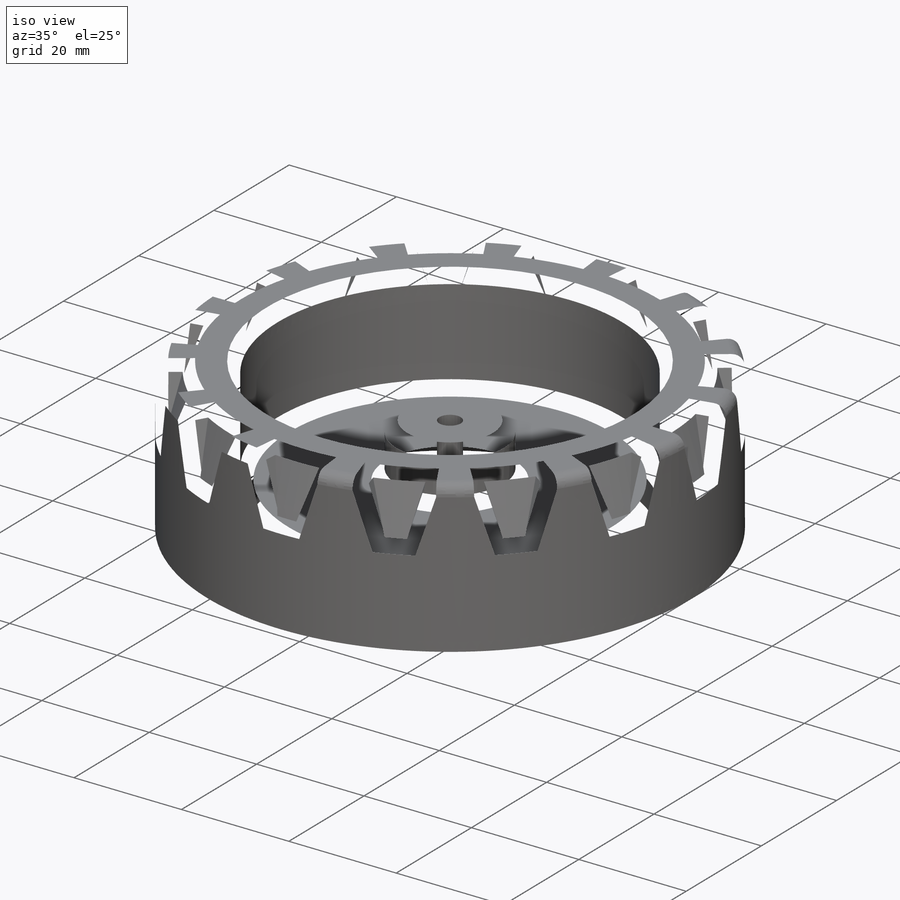
[diagram: iso view]
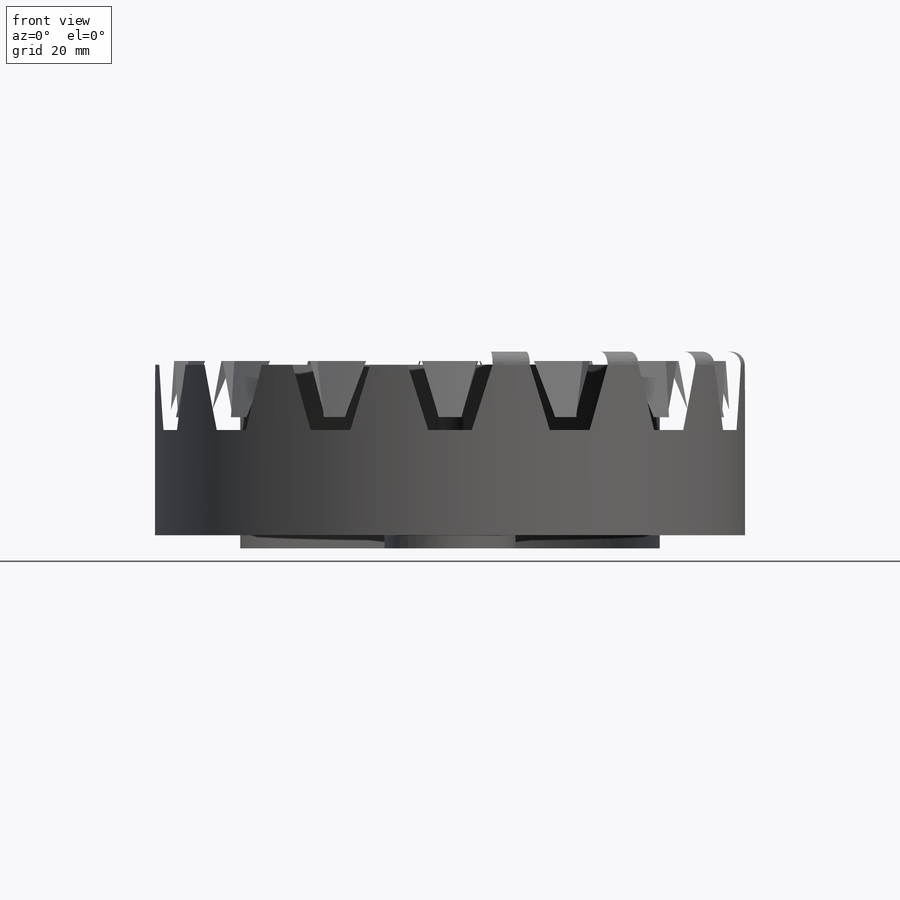
[diagram: front view]
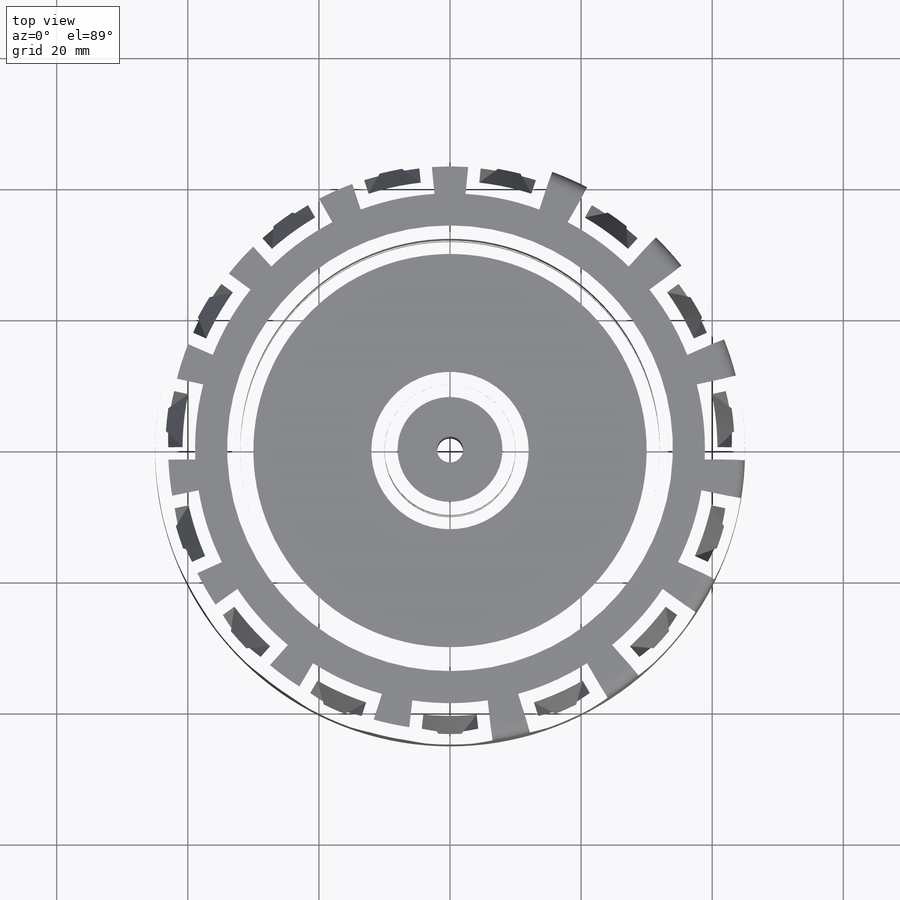
[diagram: top view]
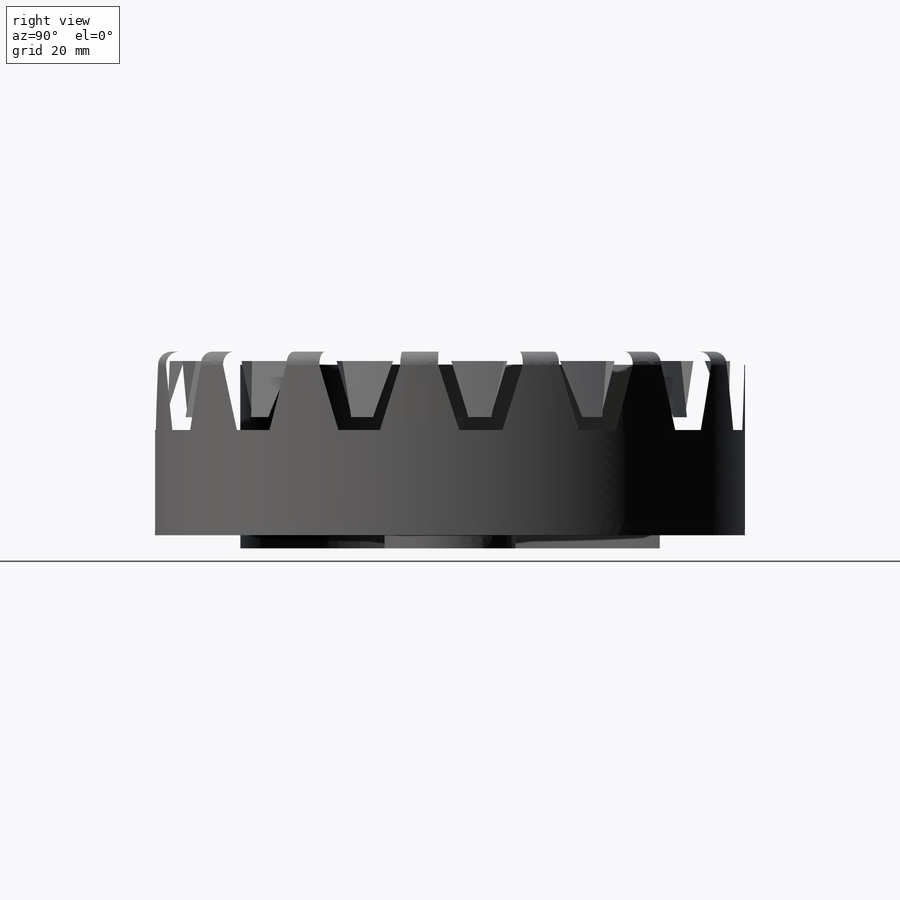
[diagram: right view]
SOLIDWORKS PART (.sldprt)
format: sldprt  version: not decoded by parser v0  size: 1,180,160 bytes
history: native  units: mm
features: sketch x6, cut_extrude x5, fillet x2, material x1, extrude x1 (+14 scaffold rows collapsed)
feature tree (29):
  scaffold x14  (default folders/planes/origin — collapsed)
  material  "Material <not specified>"
  sketch  "Sketch1"  dims[D1=~44.388277mm]
  extrude  "Extrude1"  Depth=30mm
  sketch  "Sketch2"  dims[D1=~6.797263mm]
  cut_extrude  "Cut-Extrude1"  [1 undecoded]
  sketch  "Sketch4"  dims[D1=~32.616331mm]
  cut_extrude  "Cut-Extrude2"  Depth=20mm
  sketch  "Sketch5"
  cut_extrude  "Cut-Extrude3"  Depth=10mm
  sketch  "Sketch6"  dims[D1=~28.913504mm]
  cut_extrude  "Cut-Extrude4"  Depth=5mm
  sketch  "Sketch7"
  cut_extrude  "Cut-Extrude5"  Depth=10mm
  fillet  "Fillet1"  Radius=2mm
  fillet  "Fillet2"  Radius=2mm
decode coverage: 11 of 14 modeling features carry decoded parameters
note: ~ marks probable driven/reference dimensions
note: 1 parameter value undecoded
note: suppression state not decoded; provenance and decode notes live in map.json
